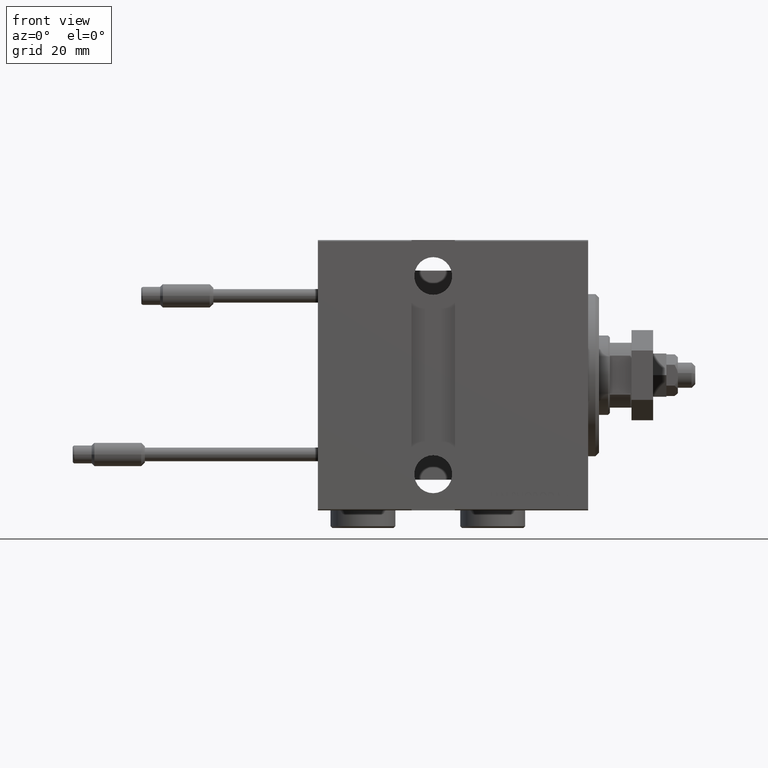
[diagram: clean part render]
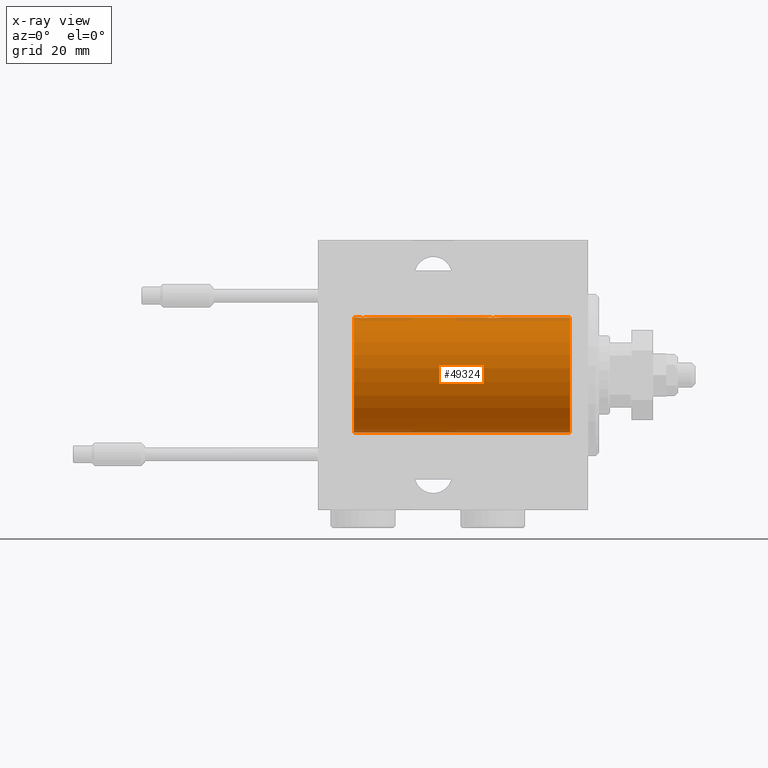
[diagram: x-ray — body ghosted, one internal face saturated and labeled with its STEP entity id]
A machine part, front view, then the same camera in x-ray: the body is ghosted and one INTERNAL B-rep face — a face not visible from any outside direction — is saturated and labeled: STEP entity #49324.
In plain terms, the highlighted cylindrical surface (partial cylindrical patch) has radius 16 mm, axis along (1, 0, -0).
Its self-contained STEP definition (entity closure, byte-faithful):
#184 = CARTESIAN_POINT ( 'NONE',  ( 64.49999999999998579, 3.415560487804343463E-15, 16.00000000000000000 ) ) ;
#368 = CARTESIAN_POINT ( 'NONE',  ( 24.60216273501104567, 0.6445079780200539954, 15.98747331501412461 ) ) ;
#701 = CARTESIAN_POINT ( 'NONE',  ( 61.49688752964961935, 1.735145127817733002, 15.90580292899658410 ) ) ;
#1381 = CARTESIAN_POINT ( 'NONE',  ( 26.37014691649501685, 2.000047931387139322, 15.87450182760079187 ) ) ;
#1616 = DIRECTION ( 'NONE',  ( -1.000000000000000000, 0.000000000000000000, 0.000000000000000000 ) ) ;
#3197 = AXIS2_PLACEMENT_3D ( 'NONE', #10062, #34929, #41932 ) ;
#3740 = CARTESIAN_POINT ( 'NONE',  ( 28.39758870055591444, 0.6452446332038146437, 15.98744362947834574 ) ) ;
#4071 = CARTESIAN_POINT ( 'NONE',  ( 61.28032342557722245, 1.590393755195991909, 15.92092783521423272 ) ) ;
#4556 = VECTOR ( 'NONE', #33689, 1000.000000000000000 ) ;
#4595 = CARTESIAN_POINT ( 'NONE',  ( 62.23748416992101085, 1.987008272775779627, 15.87616016863256618 ) ) ;
#4770 = CARTESIAN_POINT ( 'NONE',  ( 24.70250071394960045, 0.8866640484200088990, 15.97587307151817448 ) ) ;
#4830 = CARTESIAN_POINT ( 'NONE',  ( 4.999999999999997335, 1.959434878635765131E-15, -16.00000000000000000 ) ) ;
#5025 = EDGE_CURVE ( 'NONE', #10154, #48625, #18560, .T. ) ;
#5028 = CARTESIAN_POINT ( 'NONE',  ( 25.17924175171067702, 1.507649250492130388, 15.92908549642226745 ) ) ;
#5715 = LINE ( 'NONE', #29550, #48440 ) ;
#5800 = CARTESIAN_POINT ( 'NONE',  ( 64.00610712468245822, 1.322357532253809476, 15.94553003295877680 ) ) ;
#5975 = CARTESIAN_POINT ( 'NONE',  ( 65.00000000000000000, 0.000000000000000000, 16.00000000000000000 ) ) ;
#6221 = VERTEX_POINT ( 'NONE', #31215 ) ;
#6237 = DIRECTION ( 'NONE',  ( -1.000000000000000000, -0.000000000000000000, -0.000000000000000000 ) ) ;
#7023 = VERTEX_POINT ( 'NONE', #27308 ) ;
#7624 = CARTESIAN_POINT ( 'NONE',  ( 28.09051504852099512, 1.219564485341767091, 15.95382484008323409 ) ) ;
#7966 = CARTESIAN_POINT ( 'NONE',  ( 64.43611326682059826, 0.5181437283162059204, 15.99211983514074653 ) ) ;
#8215 = CARTESIAN_POINT ( 'NONE',  ( 63.50659181559576183, 1.747750603376297951, 15.90457341008072056 ) ) ;
#8397 = CARTESIAN_POINT ( 'NONE',  ( 24.99262839687570903, 1.321075116345881595, 15.94564302722883298 ) ) ;
#8553 = VERTEX_POINT ( 'NONE', #13750 ) ;
#8745 = CARTESIAN_POINT ( 'NONE',  ( 60.51309075167873885, 0.2632563459770802528, 15.99834873924246104 ) ) ;
#9513 = DIRECTION ( 'NONE',  ( -1.000000000000000000, -0.000000000000000000, -0.000000000000000000 ) ) ;
#9528 = LINE ( 'NONE', #17301, #33541 ) ;
#10062 = CARTESIAN_POINT ( 'NONE',  ( 65.00000000000000000, 0.000000000000000000, 0.000000000000000000 ) ) ;
#10154 = VERTEX_POINT ( 'NONE', #29389 ) ;
#10379 = LINE ( 'NONE', #5975, #4556 ) ;
#11254 = CARTESIAN_POINT ( 'NONE',  ( 28.00610712468246177, 1.322357532253821910, 15.94553003295878391 ) ) ;
#11960 = AXIS2_PLACEMENT_3D ( 'NONE', #30512, #46305, #14978 ) ;
#12115 = CARTESIAN_POINT ( 'NONE',  ( 64.29713414748218270, 0.8874076679346717400, 15.97583181162460697 ) ) ;
#12366 = CARTESIAN_POINT ( 'NONE',  ( 64.23568098498259360, 1.002241074716276881, 15.96895041604535770 ) ) ;
#12546 = CARTESIAN_POINT ( 'NONE',  ( 26.23748416992101085, 1.987008272775788731, 15.87616016863256618 ) ) ;
#12626 = CARTESIAN_POINT ( 'NONE',  ( 64.48700524008410184, 0.2623312429553320002, 15.99836091803360105 ) ) ;
#13048 = CARTESIAN_POINT ( 'NONE',  ( 24.49999999999999289, 0.1305944228192297274, 15.99999999999999645 ) ) ;
#13750 = CARTESIAN_POINT ( 'NONE',  ( 65.00000000000000000, 1.959434878635765131E-15, -16.00000000000000000 ) ) ;
#14978 = DIRECTION ( 'NONE',  ( 0.000000000000000000, 0.000000000000000000, 1.000000000000000000 ) ) ;
#15657 = CARTESIAN_POINT ( 'NONE',  ( 26.76191462762254858, 1.999903730784154066, 15.87451999516785861 ) ) ;
#15999 = CARTESIAN_POINT ( 'NONE',  ( 61.17924175171067702, 1.507649250492122839, 15.92908549642226745 ) ) ;
#17189 = CARTESIAN_POINT ( 'NONE',  ( 25.98086902289887234, 1.935876924222074358, 15.88247600692093187 ) ) ;
#17301 = CARTESIAN_POINT ( 'NONE',  ( 65.00000000000000000, 0.000000000000000000, 16.00000000000000000 ) ) ;
#17470 = CARTESIAN_POINT ( 'NONE',  ( 60.56430947073870641, 0.5198215460038694280, 15.99206840425679310 ) ) ;
#17944 = CARTESIAN_POINT ( 'NONE',  ( 4.999999999999997335, 0.000000000000000000, 0.000000000000000000 ) ) ;
#18171 = EDGE_CURVE ( 'NONE', #6221, #27429, #39211, .T. ) ;
#18205 = DIRECTION ( 'NONE',  ( 0.000000000000000000, 0.000000000000000000, 1.000000000000000000 ) ) ;
#18236 = ORIENTED_EDGE ( 'NONE', *, *, #24019, .T. ) ;
#18391 = ORIENTED_EDGE ( 'NONE', *, *, #42895, .T. ) ;
#18560 = B_SPLINE_CURVE_WITH_KNOTS ( 'NONE', 3,
 ( #184, #47837, #12626, #7966, #47585, #12115, #12366, #28432, #5800, #37155, #8215, #37414, #27657, #25488, #4595, #28170, #41290, #43450, #701, #4071, #15999, #35956, #20406, #36204, #44227, #31535, #17470, #8745, #24021, #21608 ),
 .UNSPECIFIED., .F., .F.,
 ( 4, 2, 2, 2, 2, 2, 2, 2, 2, 2, 2, 2, 2, 2, 4 ),
 ( 3.318791181215196379E-18, 0.0003911894522871183053, 0.0007823789045742333579, 0.001173568356861347814, 0.001564757809148462596, 0.002347136713722691292, 0.003129515618296919988, 0.003520705070584034552, 0.003911894522871149117, 0.004303083975158263248, 0.004694273427445377379, 0.005085462879732491510, 0.005476652332019605642, 0.005867841784306719773, 0.006259031236593833904 ),
 .UNSPECIFIED. ) ;
#19551 = CARTESIAN_POINT ( 'NONE',  ( 27.02531756459403667, 1.947280337074160927, 15.88137861827786779 ) ) ;
#19564 = ORIENTED_EDGE ( 'NONE', *, *, #5025, .T. ) ;
#20406 = CARTESIAN_POINT ( 'NONE',  ( 60.90998471899877131, 1.220169175415108942, 15.95377581882983797 ) ) ;
#20572 = CARTESIAN_POINT ( 'NONE',  ( 24.76517329325045225, 1.003662148334361959, 15.96885838080210007 ) ) ;
#20836 = CARTESIAN_POINT ( 'NONE',  ( 25.61382242942729803, 1.797743958659254515, 15.89876304682112007 ) ) ;
#20966 = EDGE_CURVE ( 'NONE', #8553, #43514, #5715, .T. ) ;
#21089 = CARTESIAN_POINT ( 'NONE',  ( 24.90998471899876066, 1.220169175415113827, 15.95377581882983442 ) ) ;
#21608 = CARTESIAN_POINT ( 'NONE',  ( 60.50000000000000711, -2.739595594696790848E-23, 16.00000000000000000 ) ) ;
#22910 = CARTESIAN_POINT ( 'NONE',  ( 28.43611326682063378, 0.5181437283162068086, 15.99211983514074298 ) ) ;
#23134 = EDGE_CURVE ( 'NONE', #48625, #6221, #10379, .T. ) ;
#23426 = CARTESIAN_POINT ( 'NONE',  ( 27.50659181559580446, 1.747750603376297729, 15.90457341008072056 ) ) ;
#24019 = EDGE_CURVE ( 'NONE', #37533, #10154, #9528, .T. ) ;
#24021 = CARTESIAN_POINT ( 'NONE',  ( 60.50000000000001421, 0.1305944228192293111, 16.00000000000000000 ) ) ;
#25488 = CARTESIAN_POINT ( 'NONE',  ( 62.37014691649500264, 2.000047931387129552, 15.87450182760079898 ) ) ;
#26765 = CIRCLE ( 'NONE', #27569, 16.00000000000000000 ) ;
#26813 = CARTESIAN_POINT ( 'NONE',  ( 28.49999999999998579, 0.1322838750249257511, 16.00000000000000000 ) ) ;
#26890 = FACE_OUTER_BOUND ( 'NONE', #41935, .T. ) ;
#27308 = CARTESIAN_POINT ( 'NONE',  ( 4.999999999999997335, 0.000000000000000000, 16.00000000000000000 ) ) ;
#27429 = VERTEX_POINT ( 'NONE', #36524 ) ;
#27569 = AXIS2_PLACEMENT_3D ( 'NONE', #17944, #1616, #18205 ) ;
#27657 = CARTESIAN_POINT ( 'NONE',  ( 62.76191462762252371, 1.999903730784143630, 15.87451999516785506 ) ) ;
#28170 = CARTESIAN_POINT ( 'NONE',  ( 61.98086902289887945, 1.935876924222067252, 15.88247600692093187 ) ) ;
#28432 = CARTESIAN_POINT ( 'NONE',  ( 64.09051504852095604, 1.219564485341761317, 15.95382484008322344 ) ) ;
#28489 = EDGE_CURVE ( 'NONE', #37533, #8553, #38788, .T. ) ;
#28698 = LINE ( 'NONE', #44484, #45478 ) ;
#28852 = CARTESIAN_POINT ( 'NONE',  ( 24.50000000000000000, -2.739635037742051899E-23, 16.00000000000000000 ) ) ;
#29098 = CARTESIAN_POINT ( 'NONE',  ( 25.49688752964961225, 1.735145127817741439, 15.90580292899658410 ) ) ;
#29389 = CARTESIAN_POINT ( 'NONE',  ( 64.49999999999998579, 3.415560487804343463E-15, 16.00000000000000000 ) ) ;
#29550 = CARTESIAN_POINT ( 'NONE',  ( 65.00000000000000000, 1.959434878635765131E-15, -16.00000000000000000 ) ) ;
#30512 = CARTESIAN_POINT ( 'NONE',  ( 65.00000000000000000, 0.000000000000000000, 0.000000000000000000 ) ) ;
#30691 = CARTESIAN_POINT ( 'NONE',  ( 28.48700524008413382, 0.2623312429553315561, 15.99836091803360105 ) ) ;
#30942 = CARTESIAN_POINT ( 'NONE',  ( 28.23568098498261492, 1.002241074716280655, 15.96895041604536480 ) ) ;
#31215 = CARTESIAN_POINT ( 'NONE',  ( 28.49999999999999645, -1.207828523974853969E-15, 16.00000000000000000 ) ) ;
#31535 = CARTESIAN_POINT ( 'NONE',  ( 60.60216273501104212, 0.6445079780200505537, 15.98747331501412461 ) ) ;
#33541 = VECTOR ( 'NONE', #44058, 1000.000000000000000 ) ;
#33689 = DIRECTION ( 'NONE',  ( -1.000000000000000000, -0.000000000000000000, -0.000000000000000000 ) ) ;
#34929 = DIRECTION ( 'NONE',  ( -1.000000000000000000, 0.000000000000000000, 0.000000000000000000 ) ) ;
#35439 = EDGE_CURVE ( 'NONE', #27429, #7023, #28698, .T. ) ;
#35956 = CARTESIAN_POINT ( 'NONE',  ( 60.99262839687573745, 1.321075116345875378, 15.94564302722883653 ) ) ;
#36204 = CARTESIAN_POINT ( 'NONE',  ( 60.76517329325045580, 1.003662148334357296, 15.96885838080210362 ) ) ;
#36490 = ORIENTED_EDGE ( 'NONE', *, *, #28489, .F. ) ;
#36524 = CARTESIAN_POINT ( 'NONE',  ( 24.50000000000000000, -2.739635037742051899E-23, 16.00000000000000000 ) ) ;
#36743 = ORIENTED_EDGE ( 'NONE', *, *, #35439, .T. ) ;
#37155 = CARTESIAN_POINT ( 'NONE',  ( 63.72956111739784291, 1.598790766515136408, 15.92099550861381019 ) ) ;
#37414 = CARTESIAN_POINT ( 'NONE',  ( 63.02531756459401890, 1.947280337074155376, 15.88137861827787489 ) ) ;
#37533 = VERTEX_POINT ( 'NONE', #41145 ) ;
#37860 = ORIENTED_EDGE ( 'NONE', *, *, #23134, .T. ) ;
#38230 = ORIENTED_EDGE ( 'NONE', *, *, #20966, .F. ) ;
#38788 = CIRCLE ( 'NONE', #3197, 16.00000000000000000 ) ;
#39211 = B_SPLINE_CURVE_WITH_KNOTS ( 'NONE', 3,
 ( #43106, #26813, #30691, #22910, #3740, #46479, #30942, #7624, #11254, #42843, #23426, #19551, #15657, #1381, #12546, #17189, #44142, #20836, #29098, #40010, #5028, #8397, #21089, #20572, #4770, #368, #44888, #39754, #13048, #28852 ),
 .UNSPECIFIED., .F., .F.,
 ( 4, 2, 2, 2, 2, 2, 2, 2, 2, 2, 2, 2, 2, 2, 4 ),
 ( 1.745049934674283425E-18, 0.0003911894522871204737, 0.0007823789045742392126, 0.001173568356861357789, 0.001564757809148476691, 0.002347136713722706037, 0.003129515618296936034, 0.003520705070584051466, 0.003911894522871166464, 0.004303083975158282330, 0.004694273427445396461, 0.005085462879732512327, 0.005476652332019627326, 0.005867841784306743191, 0.006259031236593858190 ),
 .UNSPECIFIED. ) ;
#39515 = ORIENTED_EDGE ( 'NONE', *, *, #18171, .T. ) ;
#39754 = CARTESIAN_POINT ( 'NONE',  ( 24.51309075167874596, 0.2632563459770819736, 15.99834873924246459 ) ) ;
#40010 = CARTESIAN_POINT ( 'NONE',  ( 25.28032342557723311, 1.590393755196000347, 15.92092783521424337 ) ) ;
#41145 = CARTESIAN_POINT ( 'NONE',  ( 65.00000000000000000, 0.000000000000000000, 16.00000000000000000 ) ) ;
#41290 = CARTESIAN_POINT ( 'NONE',  ( 61.85613031966985886, 1.898058445420874651, 15.88709929148890687 ) ) ;
#41932 = DIRECTION ( 'NONE',  ( 0.000000000000000000, 0.000000000000000000, 1.000000000000000000 ) ) ;
#41935 = EDGE_LOOP ( 'NONE', ( #38230, #36490, #18236, #19564, #37860, #39515, #36743, #18391 ) ) ;
#42421 = CARTESIAN_POINT ( 'NONE',  ( 60.50000000000000711, -2.739595594696790848E-23, 16.00000000000000000 ) ) ;
#42843 = CARTESIAN_POINT ( 'NONE',  ( 27.72956111739783580, 1.598790766515148620, 15.92099550861380131 ) ) ;
#42895 = EDGE_CURVE ( 'NONE', #7023, #43514, #26765, .T. ) ;
#43106 = CARTESIAN_POINT ( 'NONE',  ( 28.49999999999999645, -1.207828523974853969E-15, 16.00000000000000000 ) ) ;
#43450 = CARTESIAN_POINT ( 'NONE',  ( 61.61382242942730159, 1.797743958659246966, 15.89876304682111652 ) ) ;
#43514 = VERTEX_POINT ( 'NONE', #4830 ) ;
#44058 = DIRECTION ( 'NONE',  ( -1.000000000000000000, -0.000000000000000000, -0.000000000000000000 ) ) ;
#44142 = CARTESIAN_POINT ( 'NONE',  ( 25.85613031966986952, 1.898058445420883311, 15.88709929148890510 ) ) ;
#44227 = CARTESIAN_POINT ( 'NONE',  ( 60.70250071394959690, 0.8866640484200044581, 15.97587307151817804 ) ) ;
#44484 = CARTESIAN_POINT ( 'NONE',  ( 65.00000000000000000, 0.000000000000000000, 16.00000000000000000 ) ) ;
#44888 = CARTESIAN_POINT ( 'NONE',  ( 24.56430947073869930, 0.5198215460038717595, 15.99206840425678955 ) ) ;
#45478 = VECTOR ( 'NONE', #9513, 1000.000000000000000 ) ;
#46049 = CYLINDRICAL_SURFACE ( 'NONE', #11960, 16.00000000000000000 ) ;
#46305 = DIRECTION ( 'NONE',  ( -1.000000000000000000, -0.000000000000000000, -0.000000000000000000 ) ) ;
#46479 = CARTESIAN_POINT ( 'NONE',  ( 28.29713414748220046, 0.8874076679346754037, 15.97583181162460697 ) ) ;
#47585 = CARTESIAN_POINT ( 'NONE',  ( 64.39758870055591444, 0.6452446332038123122, 15.98744362947834574 ) ) ;
#47837 = CARTESIAN_POINT ( 'NONE',  ( 64.49999999999997158, 0.1322838750249256956, 16.00000000000000000 ) ) ;
#48440 = VECTOR ( 'NONE', #6237, 1000.000000000000000 ) ;
#48625 = VERTEX_POINT ( 'NONE', #42421 ) ;
#49324 = ADVANCED_FACE ( 'NONE', ( #26890 ), #46049, .F. ) ;